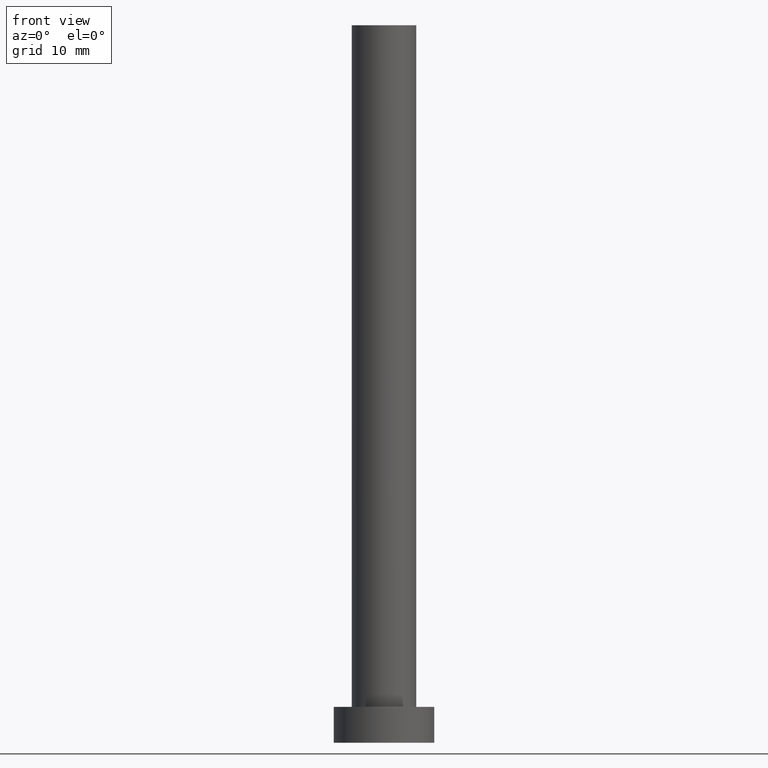
[diagram: clean part render]
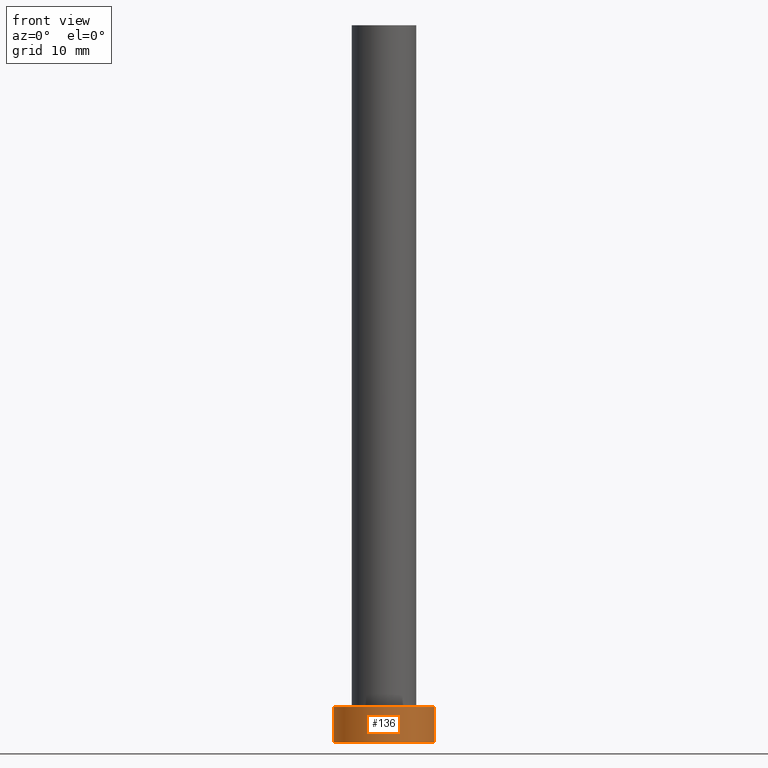
[diagram: same view with one face highlighted and labeled with its STEP entity id]
A machine part, front view. The second image highlights one B-rep face of the part: STEP entity #136.
In plain terms, the highlighted cylindrical surface (partial cylindrical patch) has radius 7 mm, axis along (-0, -0, -1).
Its self-contained STEP definition (entity closure, byte-faithful):
#8 = CARTESIAN_POINT ( 'NONE',  ( 7.000000000000000000, 8.572527594031473190E-16, 5.000000000000000000 ) ) ;
#14 = FACE_OUTER_BOUND ( 'NONE', #66, .T. ) ;
#19 = DIRECTION ( 'NONE',  ( -0.000000000000000000, -0.000000000000000000, -1.000000000000000000 ) ) ;
#22 = DIRECTION ( 'NONE',  ( 0.000000000000000000, 0.000000000000000000, 1.000000000000000000 ) ) ;
#31 = ORIENTED_EDGE ( 'NONE', *, *, #216, .T. ) ;
#32 = CARTESIAN_POINT ( 'NONE',  ( -7.000000000000000000, 0.000000000000000000, 5.000000000000000000 ) ) ;
#33 = VERTEX_POINT ( 'NONE', #107 ) ;
#40 = CIRCLE ( 'NONE', #97, 7.000000000000000000 ) ;
#59 = DIRECTION ( 'NONE',  ( 1.000000000000000000, 0.000000000000000000, 0.000000000000000000 ) ) ;
#66 = EDGE_LOOP ( 'NONE', ( #69, #158, #31, #177 ) ) ;
#69 = ORIENTED_EDGE ( 'NONE', *, *, #235, .F. ) ;
#71 = VECTOR ( 'NONE', #19, 1000.000000000000000 ) ;
#79 = DIRECTION ( 'NONE',  ( -1.000000000000000000, 0.000000000000000000, 0.000000000000000000 ) ) ;
#97 = AXIS2_PLACEMENT_3D ( 'NONE', #99, #22, #100 ) ;
#99 = CARTESIAN_POINT ( 'NONE',  ( 0.000000000000000000, 0.000000000000000000, 0.000000000000000000 ) ) ;
#100 = DIRECTION ( 'NONE',  ( 1.000000000000000000, 0.000000000000000000, 0.000000000000000000 ) ) ;
#107 = CARTESIAN_POINT ( 'NONE',  ( -7.000000000000000000, 0.000000000000000000, 5.000000000000000000 ) ) ;
#110 = CARTESIAN_POINT ( 'NONE',  ( 0.000000000000000000, 0.000000000000000000, 5.000000000000000000 ) ) ;
#117 = LINE ( 'NONE', #215, #229 ) ;
#124 = VERTEX_POINT ( 'NONE', #179 ) ;
#127 = DIRECTION ( 'NONE',  ( -0.000000000000000000, -0.000000000000000000, -1.000000000000000000 ) ) ;
#128 = VERTEX_POINT ( 'NONE', #8 ) ;
#129 = LINE ( 'NONE', #32, #71 ) ;
#136 = ADVANCED_FACE ( 'NONE', ( #14 ), #246, .T. ) ;
#158 = ORIENTED_EDGE ( 'NONE', *, *, #188, .F. ) ;
#172 = CIRCLE ( 'NONE', #221, 7.000000000000000000 ) ;
#177 = ORIENTED_EDGE ( 'NONE', *, *, #240, .T. ) ;
#179 = CARTESIAN_POINT ( 'NONE',  ( -7.000000000000000000, 0.000000000000000000, 0.000000000000000000 ) ) ;
#184 = CARTESIAN_POINT ( 'NONE',  ( 0.000000000000000000, 0.000000000000000000, 5.000000000000000000 ) ) ;
#188 = EDGE_CURVE ( 'NONE', #33, #128, #172, .T. ) ;
#193 = CARTESIAN_POINT ( 'NONE',  ( 7.000000000000000000, 8.572527594031473190E-16, 0.000000000000000000 ) ) ;
#194 = DIRECTION ( 'NONE',  ( -0.000000000000000000, -0.000000000000000000, -1.000000000000000000 ) ) ;
#215 = CARTESIAN_POINT ( 'NONE',  ( 7.000000000000000000, 8.572527594031473190E-16, 5.000000000000000000 ) ) ;
#216 = EDGE_CURVE ( 'NONE', #33, #124, #129, .T. ) ;
#221 = AXIS2_PLACEMENT_3D ( 'NONE', #184, #244, #59 ) ;
#227 = VERTEX_POINT ( 'NONE', #193 ) ;
#229 = VECTOR ( 'NONE', #194, 1000.000000000000000 ) ;
#235 = EDGE_CURVE ( 'NONE', #128, #227, #117, .T. ) ;
#240 = EDGE_CURVE ( 'NONE', #124, #227, #40, .T. ) ;
#244 = DIRECTION ( 'NONE',  ( 0.000000000000000000, 0.000000000000000000, 1.000000000000000000 ) ) ;
#246 = CYLINDRICAL_SURFACE ( 'NONE', #253, 7.000000000000000000 ) ;
#253 = AXIS2_PLACEMENT_3D ( 'NONE', #110, #127, #79 ) ;